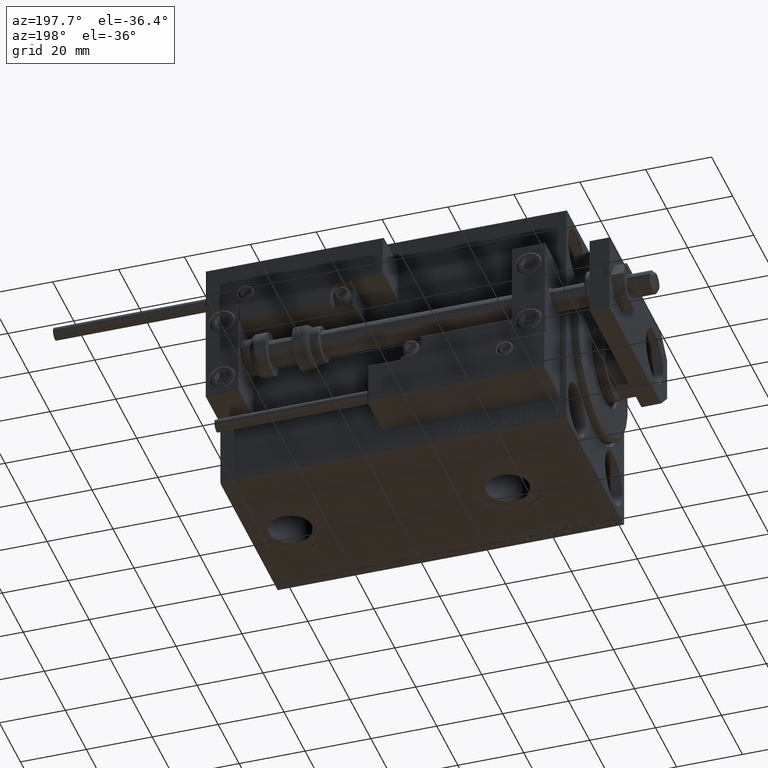
[diagram: clean part render]
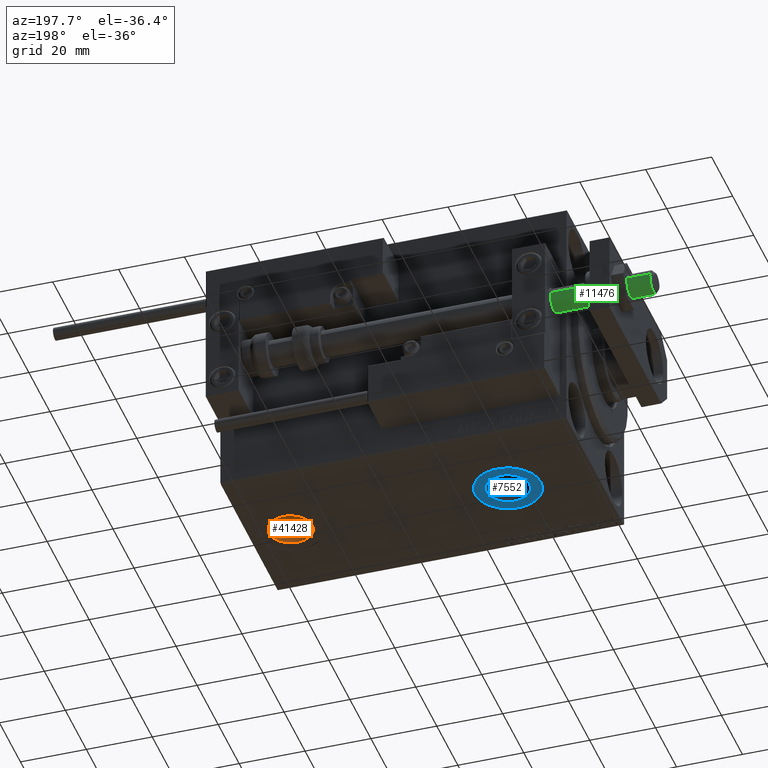
[diagram: same view with three faces highlighted in distinct colors, each labeled with its STEP entity id]
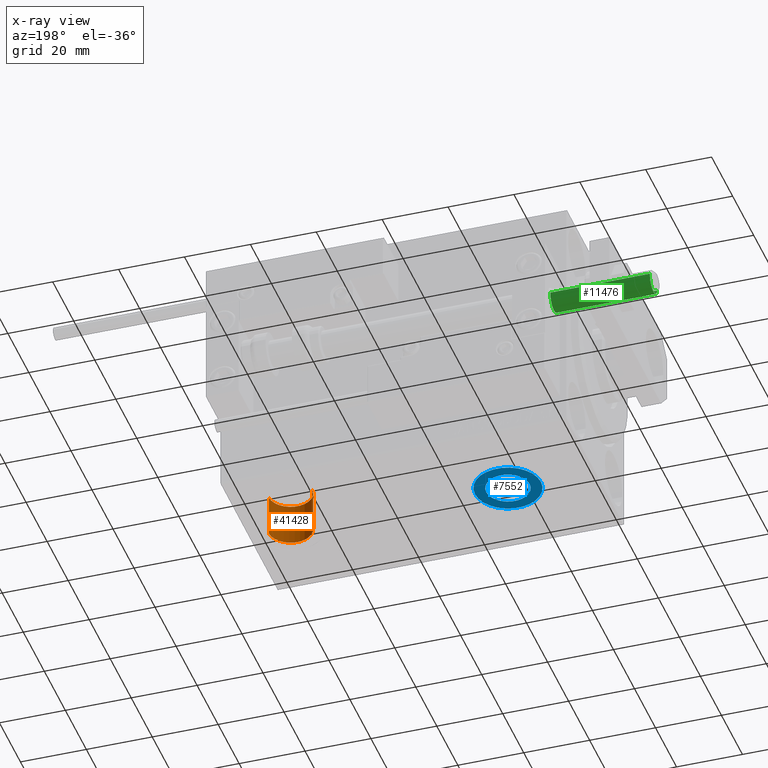
[diagram: x-ray of the same camera — body ghosted, the three highlighted faces saturated]
A machine part, auxiliary view with three faces highlighted in distinct colors.
The next image is the same camera in x-ray (body ghosted, the three faces saturated) — at least one of them is partly hidden behind the body in this view.
Their STEP definitions:

[orange] entity #41428 — the highlighted cylindrical surface (edge-blend (fillet) strip) has radius 6.58 mm, axis along (-0, -0, -1).
#4361 = LINE ( 'NONE', #10059, #38858 ) ;
#4392 = DIRECTION ( 'NONE',  ( -1.000000000000000000, 0.000000000000000000, 0.000000000000000000 ) ) ;
#5032 = VERTEX_POINT ( 'NONE', #24365 ) ;
#9591 = DIRECTION ( 'NONE',  ( -1.000000000000000000, 0.000000000000000000, 0.000000000000000000 ) ) ;
#10035 = DIRECTION ( 'NONE',  ( 0.000000000000000000, 0.000000000000000000, -1.000000000000000000 ) ) ;
#10059 = CARTESIAN_POINT ( 'NONE',  ( 99.07999999999999829, -1.018695604336876196E-14, -24.49999999999999289 ) ) ;
#11275 = AXIS2_PLACEMENT_3D ( 'NONE', #29689, #21599, #9591 ) ;
#12278 = AXIS2_PLACEMENT_3D ( 'NONE', #24222, #40115, #4392 ) ;
#13111 = VECTOR ( 'NONE', #13359, 1000.000000000000000 ) ;
#13359 = DIRECTION ( 'NONE',  ( -0.000000000000000000, -0.000000000000000000, -1.000000000000000000 ) ) ;
#13757 = ORIENTED_EDGE ( 'NONE', *, *, #33627, .T. ) ;
#13891 = CARTESIAN_POINT ( 'NONE',  ( 85.92000000000000171, -1.099277363720772100E-14, -24.49999999999999289 ) ) ;
#14386 = EDGE_CURVE ( 'NONE', #45949, #23357, #4361, .T. ) ;
#16624 = AXIS2_PLACEMENT_3D ( 'NONE', #17339, #10035, #26221 ) ;
#17339 = CARTESIAN_POINT ( 'NONE',  ( 92.50000000000000000, -1.099277363720772100E-14, -24.49999999999999289 ) ) ;
#17365 = DIRECTION ( 'NONE',  ( -0.000000000000000000, -0.000000000000000000, -1.000000000000000000 ) ) ;
#18757 = CIRCLE ( 'NONE', #11275, 6.580000000000002736 ) ;
#19097 = CARTESIAN_POINT ( 'NONE',  ( 99.07999999999999829, -1.018695604336876196E-14, -24.49999999999999289 ) ) ;
#21599 = DIRECTION ( 'NONE',  ( 0.000000000000000000, 0.000000000000000000, -1.000000000000000000 ) ) ;
#22477 = ORIENTED_EDGE ( 'NONE', *, *, #14386, .T. ) ;
#23057 = CARTESIAN_POINT ( 'NONE',  ( 99.07999999999999829, -1.018695604336876196E-14, -37.39999999999999858 ) ) ;
#23357 = VERTEX_POINT ( 'NONE', #23057 ) ;
#24222 = CARTESIAN_POINT ( 'NONE',  ( 92.50000000000000000, -1.099277363720772100E-14, -24.49999999999999289 ) ) ;
#24365 = CARTESIAN_POINT ( 'NONE',  ( 85.92000000000000171, -1.099277363720772100E-14, -37.39999999999999858 ) ) ;
#26221 = DIRECTION ( 'NONE',  ( -1.000000000000000000, 0.000000000000000000, 0.000000000000000000 ) ) ;
#26504 = ORIENTED_EDGE ( 'NONE', *, *, #47211, .F. ) ;
#28134 = FACE_OUTER_BOUND ( 'NONE', #34949, .T. ) ;
#29689 = CARTESIAN_POINT ( 'NONE',  ( 92.50000000000000000, -1.099277363720772100E-14, -37.39999999999999858 ) ) ;
#33627 = EDGE_CURVE ( 'NONE', #23357, #5032, #18757, .T. ) ;
#34949 = EDGE_LOOP ( 'NONE', ( #26504, #22477, #13757, #46073 ) ) ;
#37865 = EDGE_CURVE ( 'NONE', #42098, #5032, #49054, .T. ) ;
#38858 = VECTOR ( 'NONE', #17365, 1000.000000000000000 ) ;
#40115 = DIRECTION ( 'NONE',  ( -0.000000000000000000, -0.000000000000000000, -1.000000000000000000 ) ) ;
#41428 = ADVANCED_FACE ( 'NONE', ( #28134 ), #48440, .F. ) ;
#42098 = VERTEX_POINT ( 'NONE', #13891 ) ;
#44384 = CARTESIAN_POINT ( 'NONE',  ( 85.92000000000000171, -1.099277363720772100E-14, -24.49999999999999289 ) ) ;
#45949 = VERTEX_POINT ( 'NONE', #19097 ) ;
#46073 = ORIENTED_EDGE ( 'NONE', *, *, #37865, .F. ) ;
#46632 = CIRCLE ( 'NONE', #16624, 6.580000000000002736 ) ;
#47211 = EDGE_CURVE ( 'NONE', #45949, #42098, #46632, .T. ) ;
#48440 = CYLINDRICAL_SURFACE ( 'NONE', #12278, 6.580000000000002736 ) ;
#49054 = LINE ( 'NONE', #44384, #13111 ) ;

[blue] entity #7552 — the highlighted planar face has unit normal (0, 0, -1).
#2043 = DIRECTION ( 'NONE',  ( -1.000000000000000000, 0.000000000000000000, -0.000000000000000000 ) ) ;
#2310 = DIRECTION ( 'NONE',  ( 0.000000000000000000, 0.000000000000000000, -1.000000000000000000 ) ) ;
#2577 = CIRCLE ( 'NONE', #46664, 6.580000000000002736 ) ;
#2899 = EDGE_CURVE ( 'NONE', #14664, #18628, #49376, .T. ) ;
#3305 = ORIENTED_EDGE ( 'NONE', *, *, #51547, .F. ) ;
#3793 = DIRECTION ( 'NONE',  ( 0.000000000000000000, 0.000000000000000000, -1.000000000000000000 ) ) ;
#5530 = CARTESIAN_POINT ( 'NONE',  ( 26.50000000000000000, -2.726986211408916281E-15, -37.39999999999999858 ) ) ;
#5538 = AXIS2_PLACEMENT_3D ( 'NONE', #5530, #26137, #49060 ) ;
#5728 = CIRCLE ( 'NONE', #13218, 6.580000000000002736 ) ;
#7552 = ADVANCED_FACE ( 'NONE', ( #33098, #9354 ), #37266, .T. ) ;
#9354 = FACE_OUTER_BOUND ( 'NONE', #17394, .T. ) ;
#10450 = CARTESIAN_POINT ( 'NONE',  ( 16.50000000000000000, -2.726986211408916281E-15, -37.39999999999999858 ) ) ;
#11506 = EDGE_CURVE ( 'NONE', #18628, #14664, #33881, .T. ) ;
#13218 = AXIS2_PLACEMENT_3D ( 'NONE', #14986, #24113, #43915 ) ;
#14586 = AXIS2_PLACEMENT_3D ( 'NONE', #33603, #2310, #2043 ) ;
#14664 = VERTEX_POINT ( 'NONE', #42086 ) ;
#14986 = CARTESIAN_POINT ( 'NONE',  ( 26.50000000000000000, -2.726986211408916281E-15, -37.39999999999999858 ) ) ;
#16726 = DIRECTION ( 'NONE',  ( -1.000000000000000000, 0.000000000000000000, 0.000000000000000000 ) ) ;
#17394 = EDGE_LOOP ( 'NONE', ( #23254, #28934 ) ) ;
#18628 = VERTEX_POINT ( 'NONE', #10450 ) ;
#19684 = DIRECTION ( 'NONE',  ( -1.000000000000000000, 0.000000000000000000, 0.000000000000000000 ) ) ;
#19815 = EDGE_CURVE ( 'NONE', #30431, #50123, #5728, .T. ) ;
#20369 = ORIENTED_EDGE ( 'NONE', *, *, #19815, .F. ) ;
#23254 = ORIENTED_EDGE ( 'NONE', *, *, #11506, .T. ) ;
#24113 = DIRECTION ( 'NONE',  ( 0.000000000000000000, 0.000000000000000000, -1.000000000000000000 ) ) ;
#26137 = DIRECTION ( 'NONE',  ( 0.000000000000000000, 0.000000000000000000, -1.000000000000000000 ) ) ;
#28285 = CARTESIAN_POINT ( 'NONE',  ( 33.07999999999999829, -1.921168617569957634E-15, -37.39999999999999858 ) ) ;
#28737 = DIRECTION ( 'NONE',  ( 0.000000000000000000, 0.000000000000000000, -1.000000000000000000 ) ) ;
#28934 = ORIENTED_EDGE ( 'NONE', *, *, #2899, .T. ) ;
#29514 = CARTESIAN_POINT ( 'NONE',  ( 26.50000000000000000, -2.726986211408916281E-15, -37.39999999999999858 ) ) ;
#30431 = VERTEX_POINT ( 'NONE', #31447 ) ;
#31447 = CARTESIAN_POINT ( 'NONE',  ( 19.91999999999999815, -2.726986211408916281E-15, -37.39999999999999858 ) ) ;
#32775 = AXIS2_PLACEMENT_3D ( 'NONE', #39512, #3793, #19684 ) ;
#33098 = FACE_BOUND ( 'NONE', #46817, .T. ) ;
#33603 = CARTESIAN_POINT ( 'NONE',  ( 0.000000000000000000, 0.000000000000000000, -37.39999999999999858 ) ) ;
#33881 = CIRCLE ( 'NONE', #5538, 9.999999999999998224 ) ;
#37266 = PLANE ( 'NONE',  #14586 ) ;
#39512 = CARTESIAN_POINT ( 'NONE',  ( 26.50000000000000000, -2.726986211408916281E-15, -37.39999999999999858 ) ) ;
#42086 = CARTESIAN_POINT ( 'NONE',  ( 36.50000000000000000, -1.502339412261563813E-15, -37.39999999999999858 ) ) ;
#43915 = DIRECTION ( 'NONE',  ( -1.000000000000000000, 0.000000000000000000, 0.000000000000000000 ) ) ;
#46664 = AXIS2_PLACEMENT_3D ( 'NONE', #29514, #28737, #16726 ) ;
#46817 = EDGE_LOOP ( 'NONE', ( #20369, #3305 ) ) ;
#49060 = DIRECTION ( 'NONE',  ( -1.000000000000000000, 0.000000000000000000, 0.000000000000000000 ) ) ;
#49376 = CIRCLE ( 'NONE', #32775, 9.999999999999998224 ) ;
#50123 = VERTEX_POINT ( 'NONE', #28285 ) ;
#51547 = EDGE_CURVE ( 'NONE', #50123, #30431, #2577, .T. ) ;

[green] entity #11476 — the highlighted cylindrical surface (edge-blend (fillet) strip) has radius 3.5 mm, axis along (1, -0, -0).
#770 = VECTOR ( 'NONE', #12701, 1000.000000000000000 ) ;
#1244 = EDGE_CURVE ( 'NONE', #31446, #9641, #35184, .T. ) ;
#3561 = CARTESIAN_POINT ( 'NONE',  ( -3.500000000000000000, 4.286263797015736595E-16, -28.70000000000001705 ) ) ;
#4504 = CARTESIAN_POINT ( 'NONE',  ( 0.000000000000000000, 0.000000000000000000, -29.69999999999999929 ) ) ;
#5409 = CARTESIAN_POINT ( 'NONE',  ( -3.500000000000000000, 4.286263797015736595E-16, -29.69999999999999929 ) ) ;
#5470 = ORIENTED_EDGE ( 'NONE', *, *, #39872, .T. ) ;
#6876 = VERTEX_POINT ( 'NONE', #51514 ) ;
#7820 = CARTESIAN_POINT ( 'NONE',  ( 3.500000000000000000, 0.000000000000000000, -29.69999999999999929 ) ) ;
#8084 = VECTOR ( 'NONE', #21309, 1000.000000000000000 ) ;
#9641 = VERTEX_POINT ( 'NONE', #47111 ) ;
#10441 = CARTESIAN_POINT ( 'NONE',  ( 0.000000000000000000, 0.000000000000000000, -28.70000000000001705 ) ) ;
#11476 = ADVANCED_FACE ( 'NONE', ( #32155 ), #32419, .T. ) ;
#11937 = EDGE_CURVE ( 'NONE', #31446, #6876, #25235, .T. ) ;
#12701 = DIRECTION ( 'NONE',  ( -0.000000000000000000, -0.000000000000000000, 1.000000000000000000 ) ) ;
#19378 = DIRECTION ( 'NONE',  ( 1.000000000000000000, 0.000000000000000000, 0.000000000000000000 ) ) ;
#19685 = AXIS2_PLACEMENT_3D ( 'NONE', #50163, #26473, #19378 ) ;
#20465 = EDGE_CURVE ( 'NONE', #9641, #40293, #43019, .T. ) ;
#20924 = DIRECTION ( 'NONE',  ( 1.000000000000000000, 0.000000000000000000, 0.000000000000000000 ) ) ;
#21309 = DIRECTION ( 'NONE',  ( -0.000000000000000000, -0.000000000000000000, 1.000000000000000000 ) ) ;
#21361 = AXIS2_PLACEMENT_3D ( 'NONE', #4504, #23812, #20924 ) ;
#21932 = DIRECTION ( 'NONE',  ( 0.000000000000000000, 0.000000000000000000, 1.000000000000000000 ) ) ;
#23812 = DIRECTION ( 'NONE',  ( -0.000000000000000000, -0.000000000000000000, 1.000000000000000000 ) ) ;
#25235 = LINE ( 'NONE', #5409, #8084 ) ;
#26473 = DIRECTION ( 'NONE',  ( 0.000000000000000000, 0.000000000000000000, -1.000000000000000000 ) ) ;
#27490 = ORIENTED_EDGE ( 'NONE', *, *, #1244, .T. ) ;
#29913 = ORIENTED_EDGE ( 'NONE', *, *, #11937, .F. ) ;
#31446 = VERTEX_POINT ( 'NONE', #3561 ) ;
#32155 = FACE_OUTER_BOUND ( 'NONE', #35471, .T. ) ;
#32419 = CYLINDRICAL_SURFACE ( 'NONE', #21361, 3.500000000000000000 ) ;
#35184 = CIRCLE ( 'NONE', #42676, 3.500000000000000000 ) ;
#35471 = EDGE_LOOP ( 'NONE', ( #29913, #27490, #38318, #5470 ) ) ;
#38318 = ORIENTED_EDGE ( 'NONE', *, *, #20465, .T. ) ;
#39872 = EDGE_CURVE ( 'NONE', #40293, #6876, #42192, .T. ) ;
#40293 = VERTEX_POINT ( 'NONE', #42740 ) ;
#42192 = CIRCLE ( 'NONE', #19685, 3.500000000000000000 ) ;
#42676 = AXIS2_PLACEMENT_3D ( 'NONE', #10441, #21932, #46421 ) ;
#42740 = CARTESIAN_POINT ( 'NONE',  ( 3.500000000000000000, 0.000000000000000000, 1.500000000000025535 ) ) ;
#43019 = LINE ( 'NONE', #7820, #770 ) ;
#46421 = DIRECTION ( 'NONE',  ( -1.000000000000000000, 0.000000000000000000, 0.000000000000000000 ) ) ;
#47111 = CARTESIAN_POINT ( 'NONE',  ( 3.500000000000000000, 0.000000000000000000, -28.70000000000001705 ) ) ;
#50163 = CARTESIAN_POINT ( 'NONE',  ( 0.000000000000000000, 0.000000000000000000, 1.500000000000025535 ) ) ;
#51514 = CARTESIAN_POINT ( 'NONE',  ( -3.500000000000000000, 4.286263797015736595E-16, 1.500000000000025535 ) ) ;